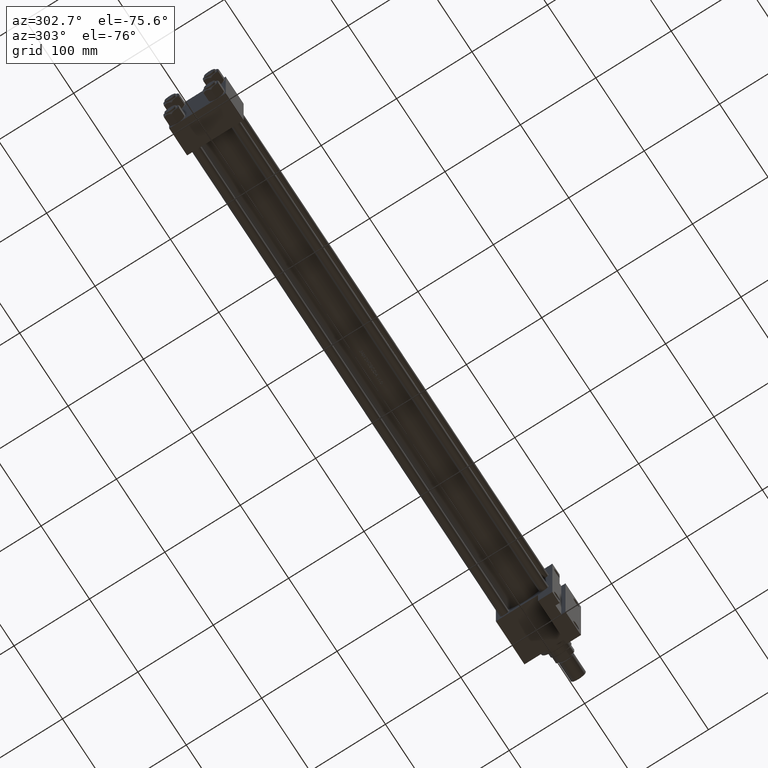
[diagram: clean part render]
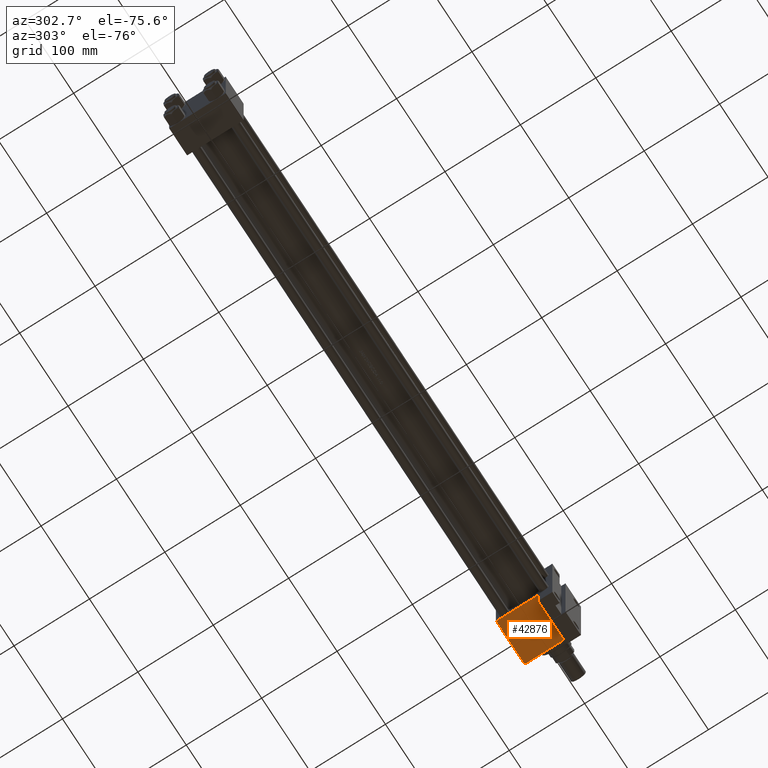
[diagram: same view with one face highlighted and labeled with its STEP entity id]
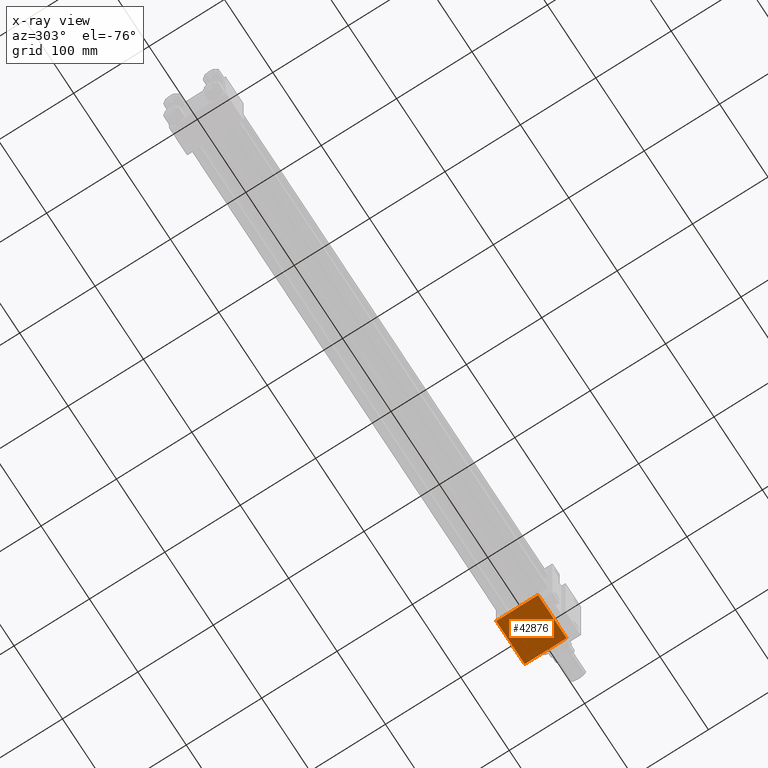
[diagram: x-ray of the same camera — body ghosted, the highlighted face saturated]
A machine part, auxiliary view. The second image highlights one B-rep face of the part: STEP entity #42876.
The next image is the same camera in x-ray: the body ghosted, the highlighted face saturated — about 0% of this face is hidden behind the body in this view.
In plain terms, the highlighted planar face has unit normal (0, 0, -1).
Its self-contained STEP definition (entity closure, byte-faithful):
#2038 = VECTOR ( 'NONE', #27043, 1000.000000000000000 ) ;
#2448 = CARTESIAN_POINT ( 'NONE',  ( 675.0000000000000000, 37.50000000000000000, -18.50000000000000355 ) ) ;
#3126 = LINE ( 'NONE', #45980, #9996 ) ;
#4502 = AXIS2_PLACEMENT_3D ( 'NONE', #32858, #40964, #25250 ) ;
#8904 = VERTEX_POINT ( 'NONE', #23874 ) ;
#9996 = VECTOR ( 'NONE', #41924, 1000.000000000000000 ) ;
#10666 = VERTEX_POINT ( 'NONE', #2448 ) ;
#11933 = CARTESIAN_POINT ( 'NONE',  ( 675.0000000000000000, 37.50000000000000000, 36.99999999999982236 ) ) ;
#12307 = CARTESIAN_POINT ( 'NONE',  ( 734.0000000000000000, 37.49999999999983658, -18.50000000000000000 ) ) ;
#13785 = DIRECTION ( 'NONE',  ( 0.000000000000000000, 0.000000000000000000, -1.000000000000000000 ) ) ;
#13937 = EDGE_CURVE ( 'NONE', #8904, #44686, #40148, .T. ) ;
#15793 = CARTESIAN_POINT ( 'NONE',  ( 675.0000000000000000, 37.50000000000000000, -18.50000000000000000 ) ) ;
#17837 = ORIENTED_EDGE ( 'NONE', *, *, #33783, .T. ) ;
#19190 = EDGE_LOOP ( 'NONE', ( #25649, #17837, #44183, #23359 ) ) ;
#19632 = EDGE_CURVE ( 'NONE', #44686, #10666, #42904, .T. ) ;
#19873 = VERTEX_POINT ( 'NONE', #11933 ) ;
#23359 = ORIENTED_EDGE ( 'NONE', *, *, #19632, .T. ) ;
#23874 = CARTESIAN_POINT ( 'NONE',  ( 734.0000000000000000, 37.50000000000000000, 36.99999999999982236 ) ) ;
#25001 = FACE_OUTER_BOUND ( 'NONE', #19190, .T. ) ;
#25250 = DIRECTION ( 'NONE',  ( 0.000000000000000000, -0.000000000000000000, 1.000000000000000000 ) ) ;
#25649 = ORIENTED_EDGE ( 'NONE', *, *, #42250, .F. ) ;
#26544 = CARTESIAN_POINT ( 'NONE',  ( 675.0000000000000000, 37.50000000000000000, 37.49999999999999289 ) ) ;
#27043 = DIRECTION ( 'NONE',  ( 0.000000000000000000, 0.000000000000000000, -1.000000000000000000 ) ) ;
#30500 = VECTOR ( 'NONE', #13785, 1000.000000000000000 ) ;
#31244 = DIRECTION ( 'NONE',  ( -1.000000000000000000, 2.704992538811295614E-15, -0.000000000000000000 ) ) ;
#32858 = CARTESIAN_POINT ( 'NONE',  ( 734.0000000000000000, 37.50000000000000000, 37.49999999999999289 ) ) ;
#33783 = EDGE_CURVE ( 'NONE', #19873, #8904, #3126, .T. ) ;
#36831 = CARTESIAN_POINT ( 'NONE',  ( 734.0000000000000000, 37.50000000000000000, 37.49999999999999289 ) ) ;
#40148 = LINE ( 'NONE', #36831, #30500 ) ;
#40465 = PLANE ( 'NONE',  #4502 ) ;
#40964 = DIRECTION ( 'NONE',  ( -0.000000000000000000, 1.000000000000000000, 0.000000000000000000 ) ) ;
#41924 = DIRECTION ( 'NONE',  ( 1.000000000000000000, 0.000000000000000000, 0.000000000000000000 ) ) ;
#42250 = EDGE_CURVE ( 'NONE', #19873, #10666, #46072, .T. ) ;
#42876 = ADVANCED_FACE ( 'NONE', ( #25001 ), #40465, .T. ) ;
#42904 = LINE ( 'NONE', #15793, #50165 ) ;
#44183 = ORIENTED_EDGE ( 'NONE', *, *, #13937, .T. ) ;
#44686 = VERTEX_POINT ( 'NONE', #12307 ) ;
#45980 = CARTESIAN_POINT ( 'NONE',  ( 734.0000000000000000, 37.50000000000000000, 36.99999999999982236 ) ) ;
#46072 = LINE ( 'NONE', #26544, #2038 ) ;
#50165 = VECTOR ( 'NONE', #31244, 1000.000000000000000 ) ;